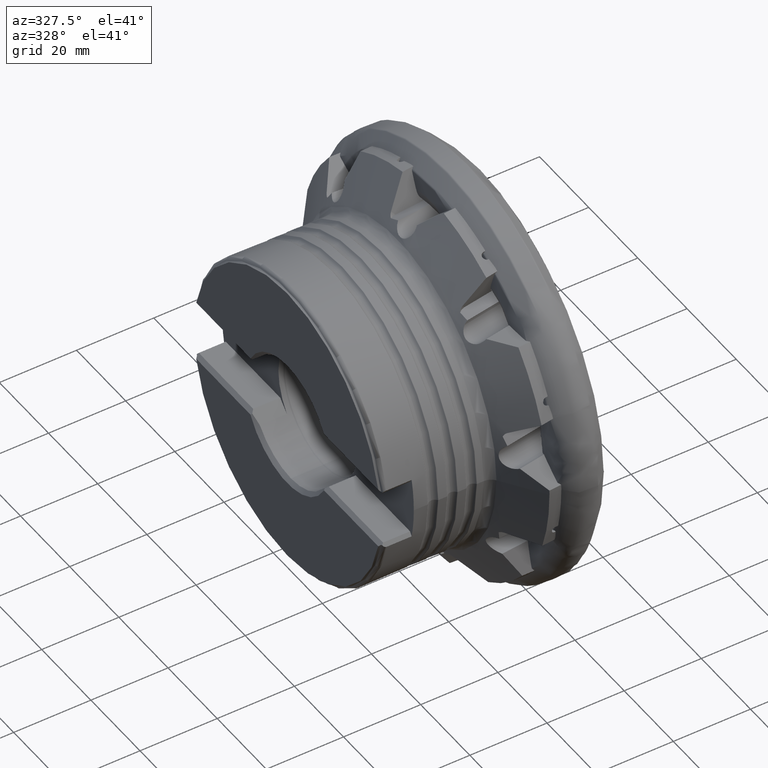
[diagram: clean part render]
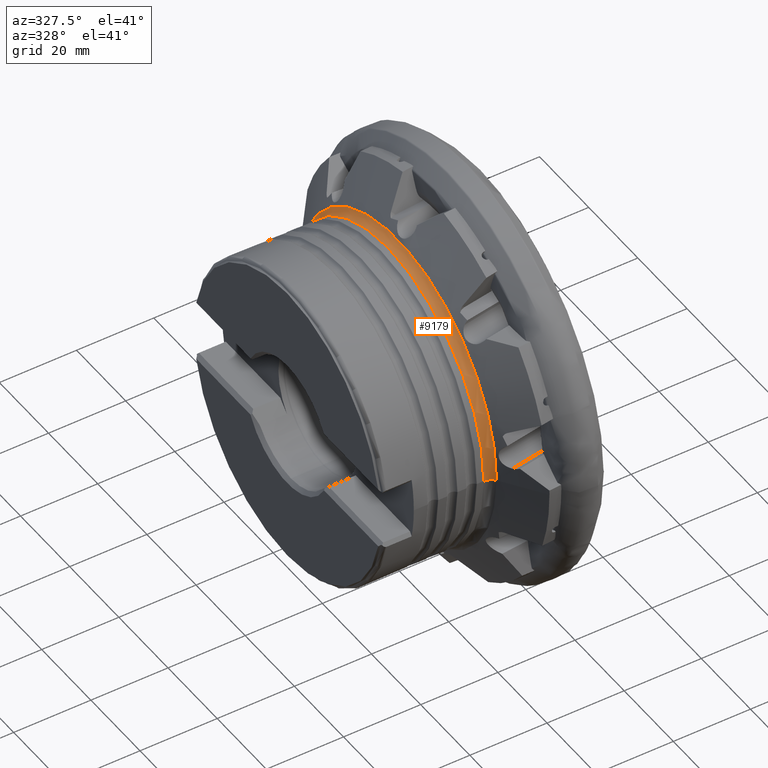
[diagram: same view with one face highlighted and labeled with its STEP entity id]
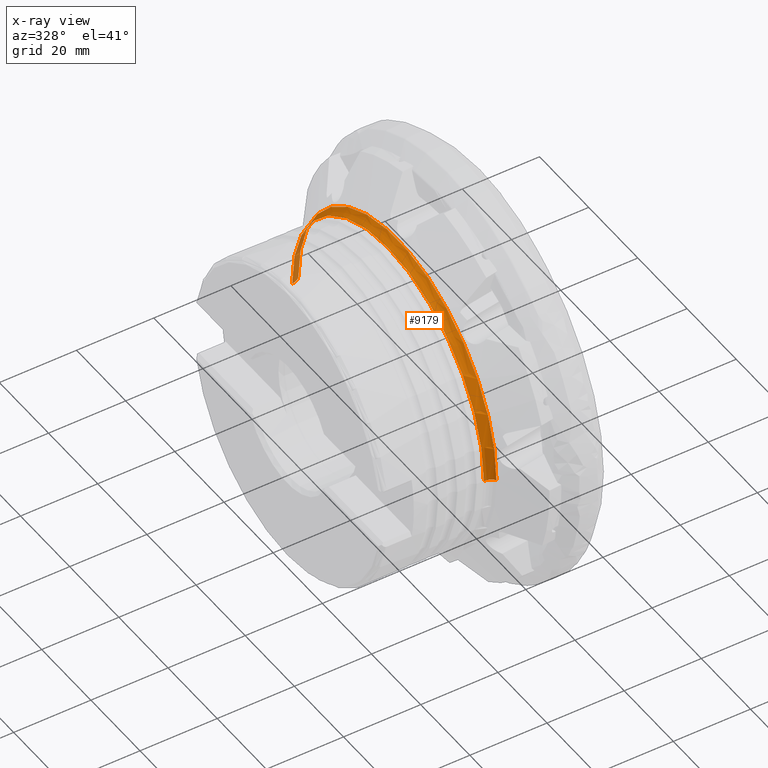
[diagram: x-ray of the same camera — body ghosted, the highlighted face saturated]
A machine part, auxiliary view. The second image highlights one B-rep face of the part: STEP entity #9179.
The next image is the same camera in x-ray: the body ghosted, the highlighted face saturated — about 5% of this face is hidden behind the body in this view.
In plain terms, the highlighted toroidal blend (fillet) surface has major radius 42 mm and minor (blend) radius 3 mm.
Its self-contained STEP definition (entity closure, byte-faithful):
#203 = DIRECTION ( 'NONE',  ( -1.499759782661858200E-032, 1.224646799147353200E-016, 1.000000000000000000 ) ) ;
#702 = DIRECTION ( 'NONE',  ( -8.896017825522085600E-017, 1.000000000000000000, 0.0000000000000000000 ) ) ;
#3020 = DIRECTION ( 'NONE',  ( 1.000000000000000000, 1.224646799147353700E-016, -0.0000000000000000000 ) ) ;
#3969 = AXIS2_PLACEMENT_3D ( 'NONE', #15477, #7365, #16851 ) ;
#4364 = ORIENTED_EDGE ( 'NONE', *, *, #7007, .T. ) ;
#4833 = CARTESIAN_POINT ( 'NONE',  ( -22.99909821797733800, -39.00000000000000700, 4.776122516674678700E-015 ) ) ;
#4933 = FACE_OUTER_BOUND ( 'NONE', #12635, .T. ) ;
#5356 = VERTEX_POINT ( 'NONE', #14883 ) ;
#5610 = CIRCLE ( 'NONE', #10236, 39.00000000000000700 ) ;
#5725 = ORIENTED_EDGE ( 'NONE', *, *, #14419, .F. ) ;
#6274 = CARTESIAN_POINT ( 'NONE',  ( -22.99909821797734100, 0.0000000000000000000, 0.0000000000000000000 ) ) ;
#6965 = CARTESIAN_POINT ( 'NONE',  ( -20.54164208511036400, 40.27927069094687300, 0.0000000000000000000 ) ) ;
#7007 = EDGE_CURVE ( 'NONE', #5356, #15985, #5610, .T. ) ;
#7342 = ORIENTED_EDGE ( 'NONE', *, *, #15442, .F. ) ;
#7365 = DIRECTION ( 'NONE',  ( -0.0000000000000000000, 0.0000000000000000000, -1.000000000000000000 ) ) ;
#7617 = DIRECTION ( 'NONE',  ( -1.224646799147353700E-016, 1.000000000000000000, 0.0000000000000000000 ) ) ;
#8423 = CARTESIAN_POINT ( 'NONE',  ( -22.99909821797733800, -42.00000000000000000, 5.143516556418883300E-015 ) ) ;
#8911 = DIRECTION ( 'NONE',  ( 1.000000000000000000, 1.224646799147353700E-016, -0.0000000000000000000 ) ) ;
#9179 = ADVANCED_FACE ( 'NONE', ( #4933 ), #11680, .F. ) ;
#9264 = ORIENTED_EDGE ( 'NONE', *, *, #13942, .T. ) ;
#9408 = CIRCLE ( 'NONE', #12573, 2.999999999999995600 ) ;
#9793 = DIRECTION ( 'NONE',  ( 0.0000000000000000000, -1.000000000000000000, 1.224646799147354900E-016 ) ) ;
#10236 = AXIS2_PLACEMENT_3D ( 'NONE', #17051, #8911, #702 ) ;
#11056 = CARTESIAN_POINT ( 'NONE',  ( -20.54164208511035700, -40.27927069094687300, 4.932787992365788100E-015 ) ) ;
#11137 = CARTESIAN_POINT ( 'NONE',  ( -20.54164208511036100, -2.515625622876097900E-015, 0.0000000000000000000 ) ) ;
#11594 = VERTEX_POINT ( 'NONE', #11056 ) ;
#11680 = TOROIDAL_SURFACE ( 'NONE', #12633, 42.00000000000000000, 2.999999999999999100 ) ;
#11788 = AXIS2_PLACEMENT_3D ( 'NONE', #11137, #3020, #12482 ) ;
#12482 = DIRECTION ( 'NONE',  ( -8.613480066642327600E-017, 1.000000000000000000, 0.0000000000000000000 ) ) ;
#12573 = AXIS2_PLACEMENT_3D ( 'NONE', #8423, #203, #9793 ) ;
#12633 = AXIS2_PLACEMENT_3D ( 'NONE', #6274, #14361, #7617 ) ;
#12635 = EDGE_LOOP ( 'NONE', ( #7342, #5725, #9264, #4364 ) ) ;
#13238 = VERTEX_POINT ( 'NONE', #6965 ) ;
#13942 = EDGE_CURVE ( 'NONE', #13238, #5356, #16892, .T. ) ;
#14361 = DIRECTION ( 'NONE',  ( 1.000000000000000000, 1.224646799147353700E-016, -0.0000000000000000000 ) ) ;
#14419 = EDGE_CURVE ( 'NONE', #13238, #11594, #17084, .T. ) ;
#14883 = CARTESIAN_POINT ( 'NONE',  ( -22.99909821797734500, 39.00000000000000700, 0.0000000000000000000 ) ) ;
#15442 = EDGE_CURVE ( 'NONE', #11594, #15985, #9408, .T. ) ;
#15477 = CARTESIAN_POINT ( 'NONE',  ( -22.99909821797734500, 42.00000000000000000, 0.0000000000000000000 ) ) ;
#15985 = VERTEX_POINT ( 'NONE', #4833 ) ;
#16851 = DIRECTION ( 'NONE',  ( -1.000000000000000000, 0.0000000000000000000, 0.0000000000000000000 ) ) ;
#16892 = CIRCLE ( 'NONE', #3969, 2.999999999999999100 ) ;
#17051 = CARTESIAN_POINT ( 'NONE',  ( -22.99909821797734100, -2.816577201592155800E-015, 0.0000000000000000000 ) ) ;
#17084 = CIRCLE ( 'NONE', #11788, 40.27927069094687300 ) ;